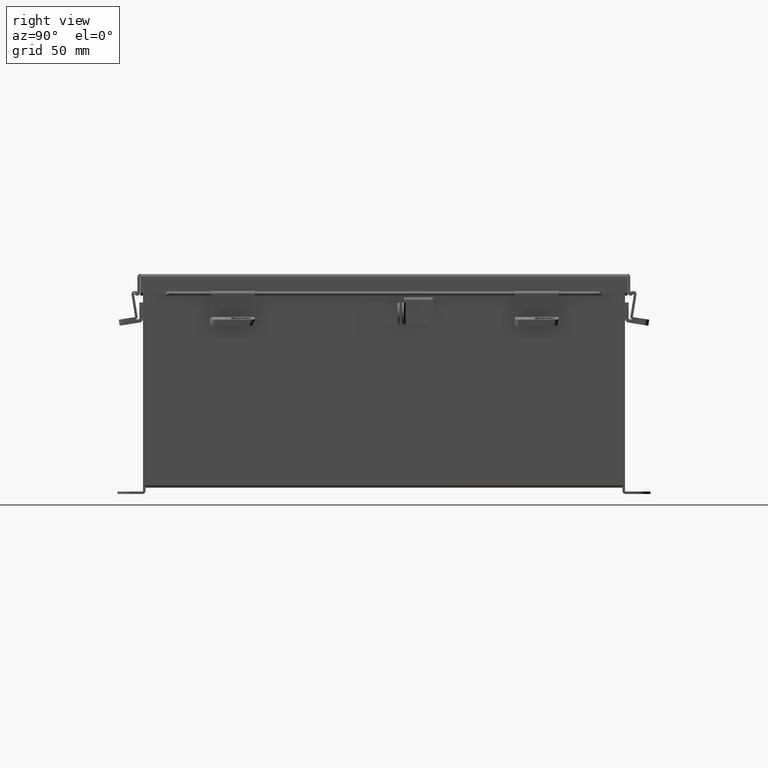
[diagram: clean part render]
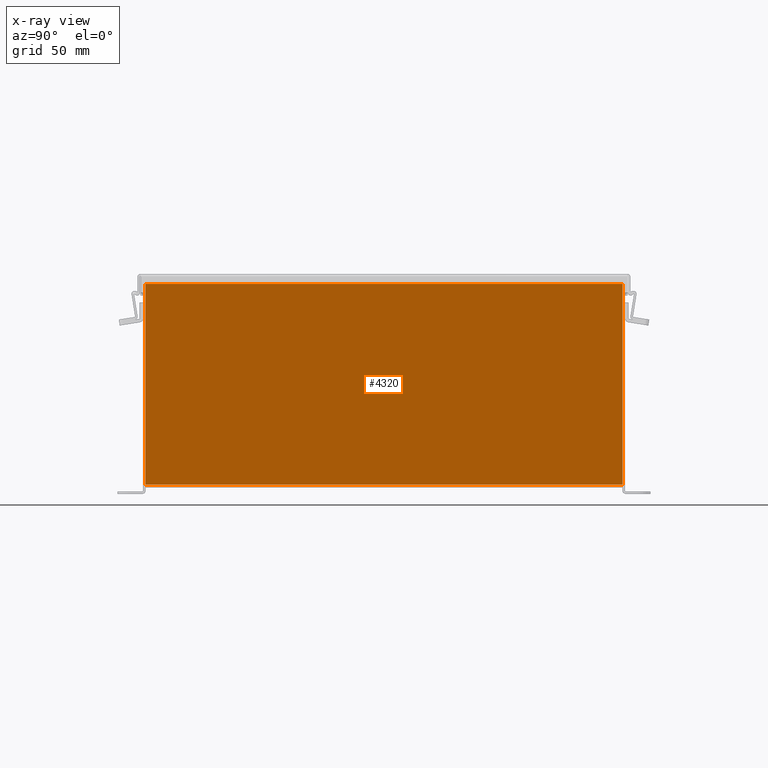
[diagram: x-ray — body ghosted, one internal face saturated and labeled with its STEP entity id]
A machine part, right view, then the same camera in x-ray: the body is ghosted and one INTERNAL B-rep face — a face not visible from any outside direction — is saturated and labeled: STEP entity #4320.
In plain terms, the highlighted planar face has unit normal (-1, 0, 0).
Its self-contained STEP definition (entity closure, byte-faithful):
#678 = ORIENTED_EDGE ( 'NONE', *, *, #1685, .F. ) ;
#757 = VERTEX_POINT ( 'NONE', #10502 ) ;
#963 = DIRECTION ( 'NONE',  ( -3.548703509357741800E-015, -0.0000000000000000000, -1.000000000000000000 ) ) ;
#1685 = EDGE_CURVE ( 'NONE', #14982, #10374, #16321, .T. ) ;
#1811 = CARTESIAN_POINT ( 'NONE',  ( 5.925300000000021300, 6.925299999999997300, 5.837600000000000100 ) ) ;
#2178 = EDGE_LOOP ( 'NONE', ( #5420, #678, #6160, #5249 ) ) ;
#2752 = CARTESIAN_POINT ( 'NONE',  ( 5.925300000000000000, -6.925300000000000900, 0.01300000000000010700 ) ) ;
#2975 = EDGE_CURVE ( 'NONE', #8642, #757, #12677, .T. ) ;
#3067 = CARTESIAN_POINT ( 'NONE',  ( 5.925300000000019600, -6.925300000000000900, 5.837600000000000100 ) ) ;
#3088 = VECTOR ( 'NONE', #963, 39.37007874015748100 ) ;
#4222 = DIRECTION ( 'NONE',  ( 0.0000000000000000000, 1.000000000000000000, 0.0000000000000000000 ) ) ;
#4320 = ADVANCED_FACE ( 'NONE', ( #4343 ), #5437, .T. ) ;
#4343 = FACE_OUTER_BOUND ( 'NONE', #2178, .T. ) ;
#4568 = VECTOR ( 'NONE', #11171, 39.37007874015748100 ) ;
#5249 = ORIENTED_EDGE ( 'NONE', *, *, #2975, .F. ) ;
#5420 = ORIENTED_EDGE ( 'NONE', *, *, #8282, .F. ) ;
#5437 = PLANE ( 'NONE',  #12451 ) ;
#6140 = CARTESIAN_POINT ( 'NONE',  ( 5.925300000000019600, 6.925299999999996500, 5.837600000000000100 ) ) ;
#6160 = ORIENTED_EDGE ( 'NONE', *, *, #15378, .F. ) ;
#7585 = DIRECTION ( 'NONE',  ( -0.0000000000000000000, -1.000000000000000000, -0.0000000000000000000 ) ) ;
#8282 = EDGE_CURVE ( 'NONE', #10374, #8642, #17897, .T. ) ;
#8315 = DIRECTION ( 'NONE',  ( 3.548703509357741000E-015, 0.0000000000000000000, 1.000000000000000000 ) ) ;
#8642 = VERTEX_POINT ( 'NONE', #15076 ) ;
#8691 = VECTOR ( 'NONE', #7585, 39.37007874015748100 ) ;
#8801 = LINE ( 'NONE', #16941, #4568 ) ;
#9578 = CARTESIAN_POINT ( 'NONE',  ( 5.925300000000000000, -6.925300000000000900, 4.274496137441791300E-018 ) ) ;
#10374 = VERTEX_POINT ( 'NONE', #3067 ) ;
#10502 = CARTESIAN_POINT ( 'NONE',  ( 5.925300000000000000, 6.925299999999996500, 0.01300000000000010500 ) ) ;
#11171 = DIRECTION ( 'NONE',  ( 3.548703509357741800E-015, -1.867738689135653700E-016, 1.000000000000000000 ) ) ;
#12451 = AXIS2_PLACEMENT_3D ( 'NONE', #15468, #16897, #8315 ) ;
#12677 = LINE ( 'NONE', #2752, #16043 ) ;
#14982 = VERTEX_POINT ( 'NONE', #1811 ) ;
#15076 = CARTESIAN_POINT ( 'NONE',  ( 5.925300000000000000, -6.925300000000000900, 0.01300000000000010500 ) ) ;
#15378 = EDGE_CURVE ( 'NONE', #757, #14982, #8801, .T. ) ;
#15468 = CARTESIAN_POINT ( 'NONE',  ( 5.925300000000000000, 0.0000000000000000000, -2.129222105614644700E-014 ) ) ;
#16043 = VECTOR ( 'NONE', #4222, 39.37007874015748100 ) ;
#16321 = LINE ( 'NONE', #6140, #8691 ) ;
#16897 = DIRECTION ( 'NONE',  ( -1.000000000000000000, 0.0000000000000000000, 3.548703509357741000E-015 ) ) ;
#16941 = CARTESIAN_POINT ( 'NONE',  ( 5.925300000000021300, 6.925299999999997300, 5.850600000000000000 ) ) ;
#17897 = LINE ( 'NONE', #9578, #3088 ) ;